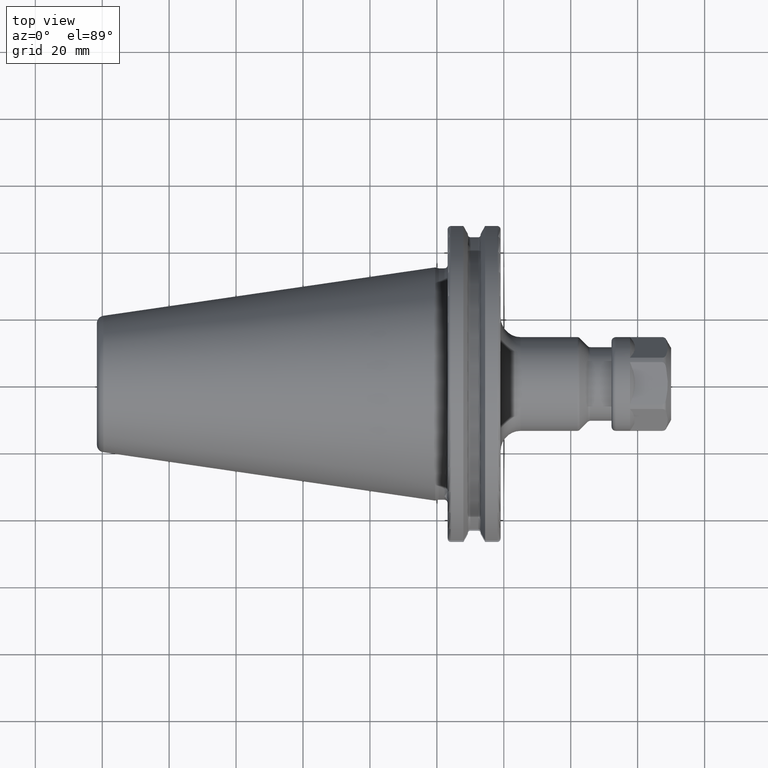
[diagram: clean part render]
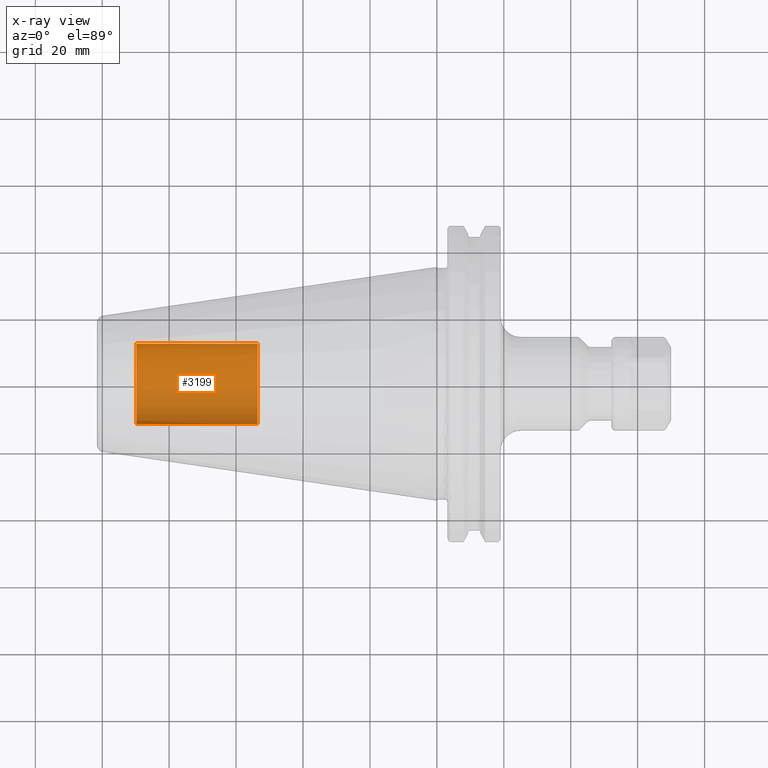
[diagram: x-ray — body ghosted, one internal face saturated and labeled with its STEP entity id]
A machine part, top view, then the same camera in x-ray: the body is ghosted and one INTERNAL B-rep face — a face not visible from any outside direction — is saturated and labeled: STEP entity #3199.
In plain terms, the highlighted cylindrical surface (partial cylindrical patch) has radius 12.0032 mm, axis along (1, 0, 0).
Its self-contained STEP definition (entity closure, byte-faithful):
#3134=CARTESIAN_POINT('',(-8.985E1,0.E0,0.E0));
#3135=DIRECTION('',(-1.E0,0.E0,0.E0));
#3136=DIRECTION('',(0.E0,1.E0,0.E0));
#3137=AXIS2_PLACEMENT_3D('',#3134,#3135,#3136);
#3139=DIRECTION('',(1.E0,0.E0,0.E0));
#3140=VECTOR('',#3139,3.625E1);
#3141=CARTESIAN_POINT('',(-8.985E1,-1.200325E1,0.E0));
#3142=LINE('',#3141,#3140);
#3148=DIRECTION('',(1.E0,0.E0,0.E0));
#3149=VECTOR('',#3148,3.625E1);
#3150=CARTESIAN_POINT('',(-8.985E1,1.200325E1,0.E0));
#3151=LINE('',#3150,#3149);
#3157=CARTESIAN_POINT('',(-5.36E1,0.E0,0.E0));
#3158=DIRECTION('',(1.E0,0.E0,0.E0));
#3159=DIRECTION('',(0.E0,-1.E0,0.E0));
#3160=AXIS2_PLACEMENT_3D('',#3157,#3158,#3159);
#3172=CARTESIAN_POINT('',(-8.985E1,1.200325E1,0.E0));
#3173=CARTESIAN_POINT('',(-8.985E1,-1.200325E1,0.E0));
#3174=VERTEX_POINT('',#3172);
#3175=VERTEX_POINT('',#3173);
#3176=CARTESIAN_POINT('',(-5.36E1,1.200325E1,0.E0));
#3177=CARTESIAN_POINT('',(-5.36E1,-1.200325E1,0.E0));
#3178=VERTEX_POINT('',#3176);
#3179=VERTEX_POINT('',#3177);
#3184=CARTESIAN_POINT('',(-8.985E1,0.E0,0.E0));
#3185=DIRECTION('',(1.E0,0.E0,0.E0));
#3186=DIRECTION('',(0.E0,1.E0,0.E0));
#3187=AXIS2_PLACEMENT_3D('',#3184,#3185,#3186);
#3188=CYLINDRICAL_SURFACE('',#3187,1.200325E1);
#3190=ORIENTED_EDGE('',*,*,#3189,.T.);
#3192=ORIENTED_EDGE('',*,*,#3191,.T.);
#3194=ORIENTED_EDGE('',*,*,#3193,.T.);
#3196=ORIENTED_EDGE('',*,*,#3195,.F.);
#3197=EDGE_LOOP('',(#3190,#3192,#3194,#3196));
#3198=FACE_OUTER_BOUND('',#3197,.F.);
#3199=ADVANCED_FACE('',(#3198),#3188,.T.);
#3138=CIRCLE('',#3137,1.200325E1);
#3161=CIRCLE('',#3160,1.200325E1);
#3189=EDGE_CURVE('',#3174,#3175,#3138,.T.);
#3191=EDGE_CURVE('',#3175,#3179,#3142,.T.);
#3193=EDGE_CURVE('',#3179,#3178,#3161,.T.);
#3195=EDGE_CURVE('',#3174,#3178,#3151,.T.);